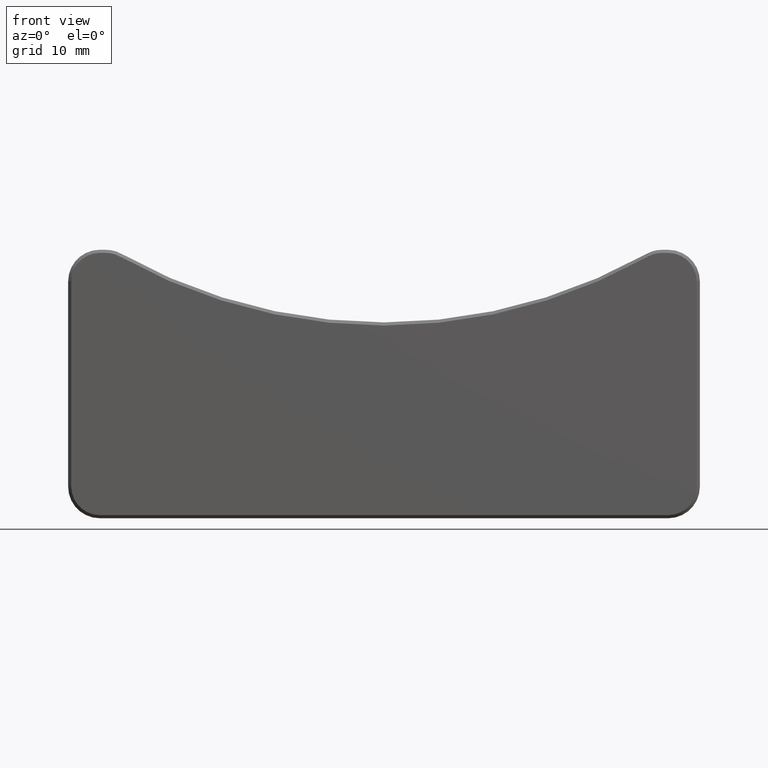
[diagram: clean part render]
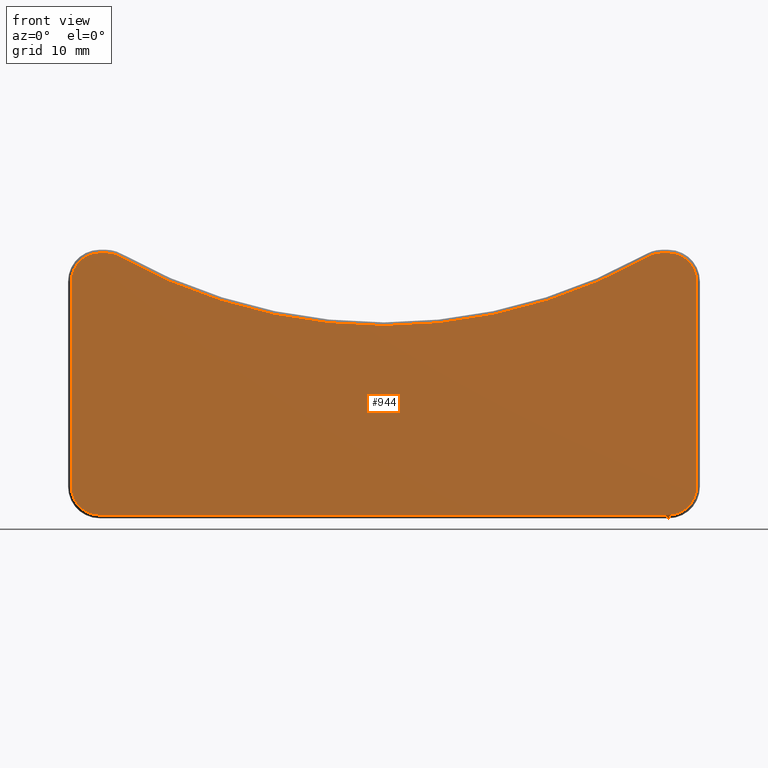
[diagram: same view with one face highlighted and labeled with its STEP entity id]
A machine part, front view. The second image highlights one B-rep face of the part: STEP entity #944.
In plain terms, the highlighted planar face has unit normal (0, 1, 0).
Its self-contained STEP definition (entity closure, byte-faithful):
#58=PLANE('',#1102);
#116=FACE_OUTER_BOUND('',#183,.T.);
#183=EDGE_LOOP('',(#806,#807,#808,#809,#810,#811,#812,#813,#814,#815,#816,
#817));
#244=LINE('',#1678,#310);
#245=LINE('',#1681,#311);
#246=LINE('',#1683,#312);
#247=LINE('',#1687,#313);
#248=LINE('',#1695,#314);
#310=VECTOR('',#1382,32.49999993391);
#311=VECTOR('',#1385,89.99999993391);
#312=VECTOR('',#1386,32.49999993391);
#313=VECTOR('',#1389,0.9801180834057);
#314=VECTOR('',#1396,0.980118068656);
#392=CIRCLE('',#1101,4.5);
#393=CIRCLE('',#1103,4.5);
#394=CIRCLE('',#1104,4.5);
#395=CIRCLE('',#1105,4.5);
#396=CIRCLE('',#1106,85.5);
#397=CIRCLE('',#1107,4.5);
#398=CIRCLE('',#1108,4.5);
#467=VERTEX_POINT('',#1670);
#468=VERTEX_POINT('',#1671);
#469=VERTEX_POINT('',#1676);
#470=VERTEX_POINT('',#1677);
#471=VERTEX_POINT('',#1679);
#472=VERTEX_POINT('',#1682);
#473=VERTEX_POINT('',#1684);
#474=VERTEX_POINT('',#1686);
#475=VERTEX_POINT('',#1688);
#476=VERTEX_POINT('',#1690);
#477=VERTEX_POINT('',#1692);
#478=VERTEX_POINT('',#1694);
#583=EDGE_CURVE('',#467,#468,#392,.T.);
#586=EDGE_CURVE('',#469,#470,#244,.T.);
#587=EDGE_CURVE('',#470,#471,#393,.T.);
#588=EDGE_CURVE('',#471,#467,#245,.T.);
#589=EDGE_CURVE('',#468,#472,#246,.T.);
#590=EDGE_CURVE('',#472,#473,#394,.T.);
#591=EDGE_CURVE('',#473,#474,#247,.T.);
#592=EDGE_CURVE('',#474,#475,#395,.T.);
#593=EDGE_CURVE('',#475,#476,#396,.T.);
#594=EDGE_CURVE('',#476,#477,#397,.T.);
#595=EDGE_CURVE('',#477,#478,#248,.T.);
#596=EDGE_CURVE('',#478,#469,#398,.T.);
#806=ORIENTED_EDGE('',*,*,#586,.T.);
#807=ORIENTED_EDGE('',*,*,#587,.T.);
#808=ORIENTED_EDGE('',*,*,#588,.T.);
#809=ORIENTED_EDGE('',*,*,#583,.T.);
#810=ORIENTED_EDGE('',*,*,#589,.T.);
#811=ORIENTED_EDGE('',*,*,#590,.T.);
#812=ORIENTED_EDGE('',*,*,#591,.T.);
#813=ORIENTED_EDGE('',*,*,#592,.T.);
#814=ORIENTED_EDGE('',*,*,#593,.T.);
#815=ORIENTED_EDGE('',*,*,#594,.T.);
#816=ORIENTED_EDGE('',*,*,#595,.T.);
#817=ORIENTED_EDGE('',*,*,#596,.T.);
#944=ADVANCED_FACE('',(#116),#58,.F.);
#1101=AXIS2_PLACEMENT_3D('',#1672,#1376,#1377);
#1102=AXIS2_PLACEMENT_3D('',#1675,#1380,#1381);
#1103=AXIS2_PLACEMENT_3D('',#1680,#1383,#1384);
#1104=AXIS2_PLACEMENT_3D('',#1685,#1387,#1388);
#1105=AXIS2_PLACEMENT_3D('',#1689,#1390,#1391);
#1106=AXIS2_PLACEMENT_3D('',#1691,#1392,#1393);
#1107=AXIS2_PLACEMENT_3D('',#1693,#1394,#1395);
#1108=AXIS2_PLACEMENT_3D('',#1696,#1397,#1398);
#1376=DIRECTION('center_axis',(0.,-1.,0.));
#1377=DIRECTION('ref_axis',(0.,0.,-1.));
#1380=DIRECTION('center_axis',(0.,1.,0.));
#1381=DIRECTION('ref_axis',(1.,0.,0.));
#1382=DIRECTION('',(-1.548764538572E-11,1.548742704186E-11,-1.));
#1383=DIRECTION('center_axis',(0.,-1.,0.));
#1384=DIRECTION('ref_axis',(-1.,0.,0.));
#1385=DIRECTION('',(1.,5.592691745924E-12,-5.592701614573E-12));
#1386=DIRECTION('',(1.548764538572E-11,1.548748169899E-11,1.));
#1387=DIRECTION('center_axis',(0.,-1.,0.));
#1388=DIRECTION('ref_axis',(1.,0.,0.));
#1389=DIRECTION('',(-1.,1.198896407645E-9,1.198896407645E-9));
#1390=DIRECTION('center_axis',(0.,-1.,0.));
#1391=DIRECTION('ref_axis',(0.,0.,1.));
#1392=DIRECTION('center_axis',(0.,1.,0.));
#1393=DIRECTION('ref_axis',(0.48910979857462,0.,-0.872222222222236));
#1394=DIRECTION('center_axis',(0.,-1.,0.));
#1395=DIRECTION('ref_axis',(0.48910979857462,0.,0.872222222222235));
#1396=DIRECTION('',(-1.,-6.853446560773E-10,-6.853374065146E-10));
#1397=DIRECTION('center_axis',(0.,-1.,0.));
#1398=DIRECTION('ref_axis',(0.,0.,1.));
#1670=CARTESIAN_POINT('',(44.99999995958,-7.4524043211073E-10,-15.4999999992555));
#1671=CARTESIAN_POINT('',(49.4999999989491,-1.05283978954567E-9,-10.99999997433));
#1672=CARTESIAN_POINT('Origin',(45.,0.,-11.));
#1675=CARTESIAN_POINT('Origin',(0.,0.,0.));
#1676=CARTESIAN_POINT('',(-49.4999999989491,-1.05283732133446E-9,21.49999997433));
#1677=CARTESIAN_POINT('',(-49.4999999992555,-7.45240898641E-10,-10.99999995958));
#1678=CARTESIAN_POINT('',(-49.49999999828,-1.72282689966E-9,21.49999997433));
#1679=CARTESIAN_POINT('',(-44.99999997433,-1.05283858239391E-9,-15.499999998949));
#1680=CARTESIAN_POINT('Origin',(-45.,0.,-11.));
#1681=CARTESIAN_POINT('',(-44.99999997433,-1.722826603601E-9,-15.49999999828));
#1682=CARTESIAN_POINT('',(49.4999999993914,-6.09327060755994E-10,21.4999999611571));
#1683=CARTESIAN_POINT('',(49.49999999828,-1.722828676017E-9,-10.99999997433));
#1684=CARTESIAN_POINT('',(44.99999997433,-1.0528384793946E-9,25.999999998949));
#1685=CARTESIAN_POINT('Origin',(45.,0.,21.5));
#1686=CARTESIAN_POINT('',(44.01988189093,-5.477662582779E-10,25.99999999945));
#1687=CARTESIAN_POINT('',(44.99999997433,-1.722826307541E-9,25.99999999828));
#1688=CARTESIAN_POINT('',(41.8188877719307,-7.62429708794694E-13,25.4249999965229));
#1689=CARTESIAN_POINT('Origin',(44.01988187172,0.,21.5));
#1690=CARTESIAN_POINT('',(-41.8188877730402,-8.66372541014699E-13,25.4249999971451));
#1691=CARTESIAN_POINT('Origin',(0.,2.84217094304E-14,100.));
#1692=CARTESIAN_POINT('',(-44.0198818892435,-2.73320909106119E-10,25.9999999997252));
#1693=CARTESIAN_POINT('Origin',(-44.01988187172,0.,21.5));
#1694=CARTESIAN_POINT('',(-44.9999999611571,-6.09749982191581E-10,25.9999999993893));
#1695=CARTESIAN_POINT('',(-44.01988189093,-5.477656846627E-10,25.99999999945));
#1696=CARTESIAN_POINT('Origin',(-45.,0.,21.5));